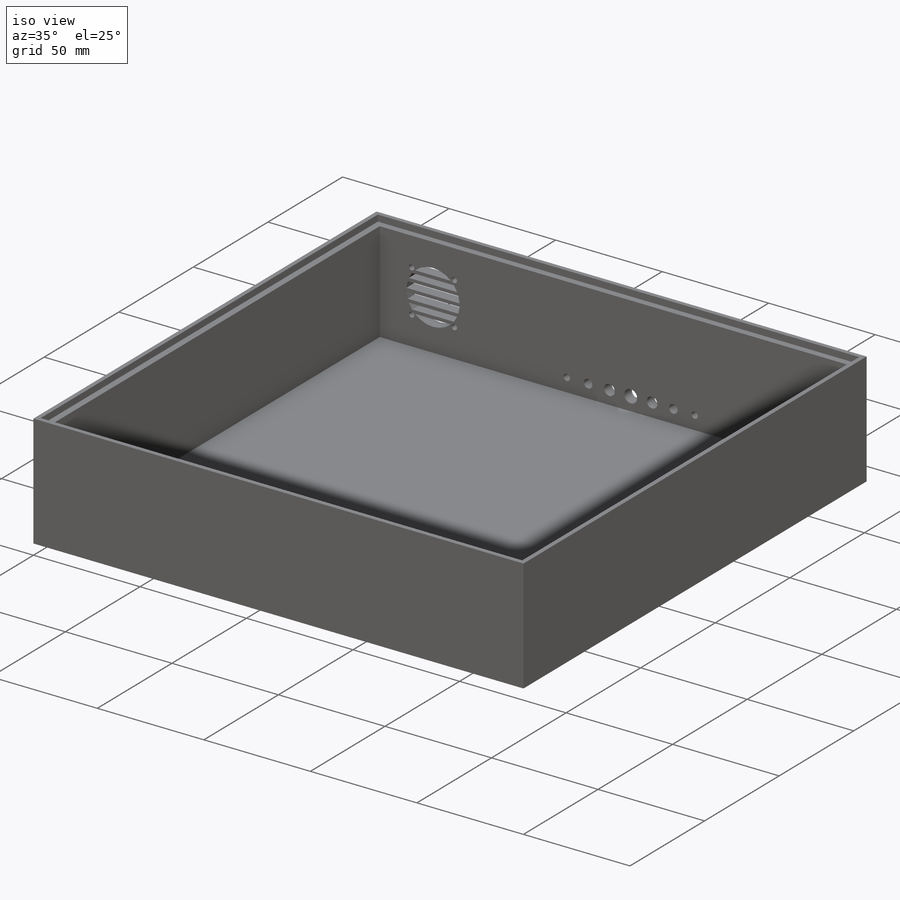
[diagram: iso view]
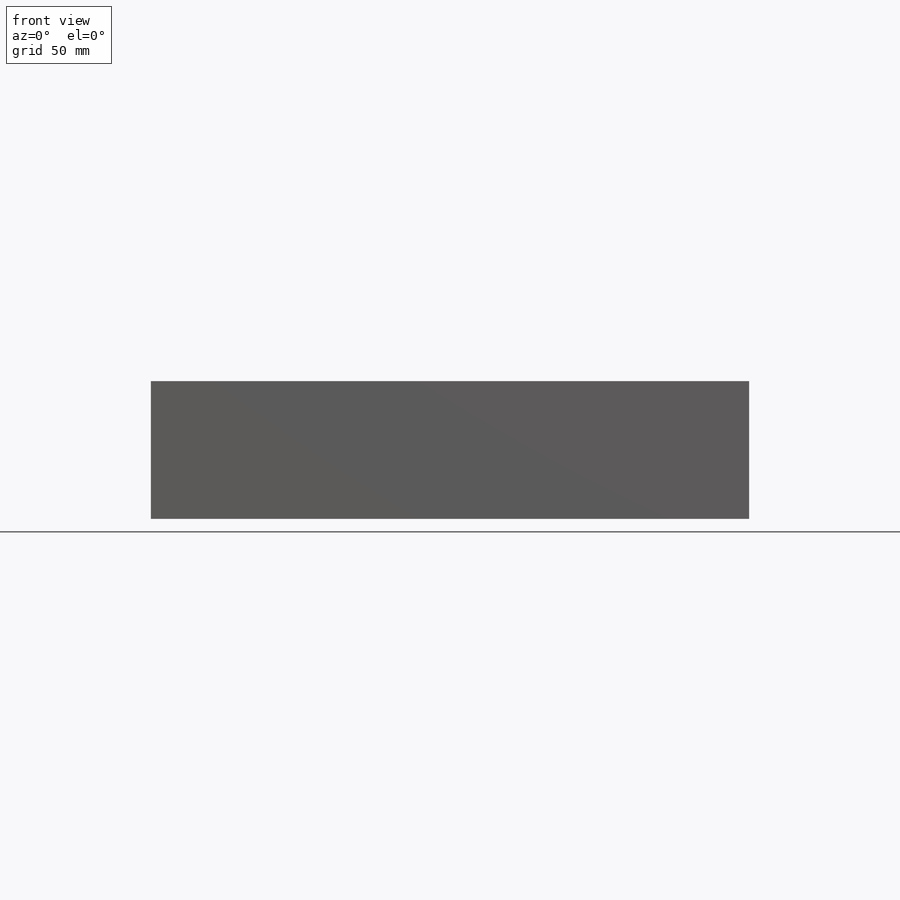
[diagram: front view]
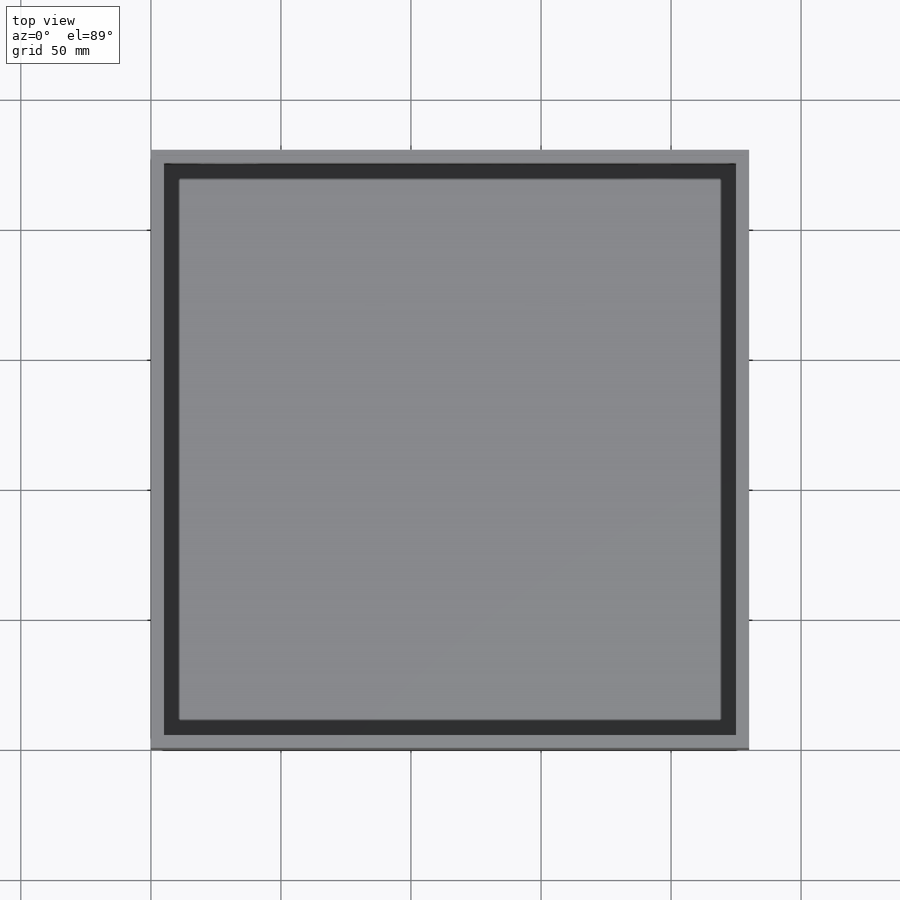
[diagram: top view]
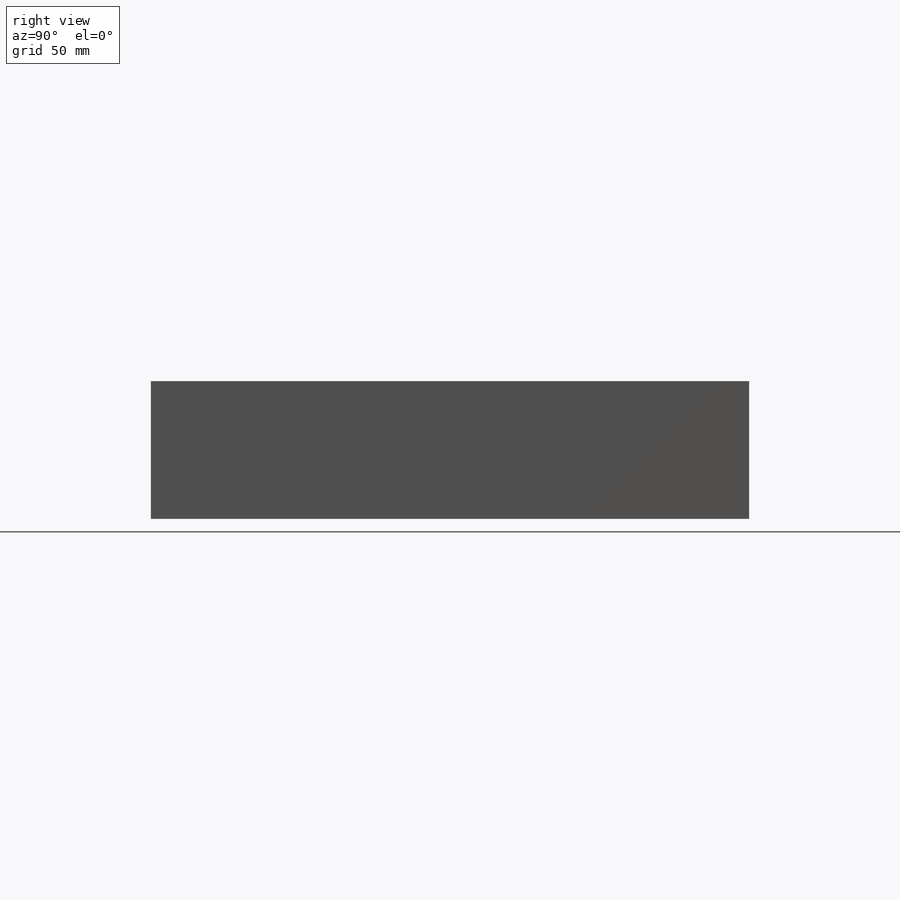
[diagram: right view]
SOLIDWORKS PART (.sldprt)
format: sldprt  version: not decoded by parser v0  size: 774,144 bytes
history: native  units: mm
features: sketch x9, cut_extrude x7, plane x3, extrude x2, material x1 (+10 scaffold rows collapsed)
feature tree (32):
  scaffold x10  (default folders/planes/origin — collapsed)
  material  "Matériau <non spécifié>"
  plane  "Plan de face"
  plane  "Plan de dessus"
  plane  "Plan de droite"
  sketch  "Esquisse1"  dims[D1=230.0mm D2=230.0mm]
  extrude  "Boss.-Extru.1"  Depth=53mm
  sketch  "Esquisse2"  dims[D1=220.0mm D2=220.0mm D3=5.0mm D4=5.0mm D5=5.0mm D6=5.0mm D7=220.0mm]
  cut_extrude  "Enlèv. mat.-Extru.1"  Depth=50mm
  sketch  "Esquisse3"  dims[D1=226.0mm D2=226.0mm D3=2.0mm D4=2.0mm]
  cut_extrude  "Enlèv. mat.-Extru.2"  Depth=3mm
  sketch  "Esquisse4"  dims[c1.D1=25.0mm c1.D2=25.0mm c1.D3=25.0mm c2.D2=30.0mm c2.D3=26.5mm]
  cut_extrude  "Enlèv. mat.-Extru.3"  Depth=13mm
  sketch  "Esquisse5"  dims[c1.D1=2.5mm c1.D2=2.5mm c1.D3=2.5mm c1.D4=2.5mm c1.D5=2.5mm c1.D6=2.5mm c1.D7=2.5mm c1.D8=2.5mm c1.D9=2.5mm c1.D10=2.5mm c1.D11=2.5mm c2.D5=20.0mm c2.D6=20.0mm c2.D7=20.0mm c2.D8=20.0mm c2.D9=16.5mm c2.D10=16.5mm c2.D11=20.0mm]
  cut_extrude  "Enlèv. mat.-Extru.4"  Depth=13mm
  sketch  "Esquisse6"  dims[c1.D1=1.5mm c1.D2=1.5mm c1.D3=1.5mm c1.D4=1.5mm c1.D5=1.5mm c1.D6=10.0mm c1.D7=5.0mm c1.D8=0.75mm c1.D9=5.0mm c1.D10=10.0mm c2.D1=17.0mm c2.D2=21.5mm c3.D1=~18.718397mm c4.D1=~0.301385deg c5.D1=1.5mm c5.D2=9.25mm c5.D3=5.25mm c5.D4=5.25mm c5.D5=9.25mm c5.D6=1.5mm]
  extrude  "Boss.-Extru.2"  Depth=5mm
  sketch  "Esquisse7"  dims[c1.D1=6.0mm c1.D2=6.0mm c1.D3=6.0mm c2.D2=8.0mm c2.D3=15.0mm]
  cut_extrude  "Enlèv. mat.-Extru.5"  Depth=5mm
  sketch  "Esquisse9"  dims[D1=12.6mm D2=11.4mm D3=30.0mm]
  cut_extrude  "Enlèv. mat.-Extru.6"  Depth=5mm
  sketch  "Esquisse10"  dims[c1.D1=3.0mm c1.D2=4.0mm c1.D3=5.0mm c1.D4=6.0mm c1.D5=5.0mm c1.D6=4.0mm c1.D7=3.0mm c1.D8=3.0mm c1.D9=4.0mm c1.D10=5.0mm c1.D11=3.0mm c1.D12=5.0mm c1.D13=6.0mm c2.D8=10.0mm c2.D9=10.0mm c2.D10=10.0mm c2.D11=10.0mm c2.D12=10.0mm c2.D13=10.0mm]
  cut_extrude  "Enlèv. mat.-Extru.7"  Depth=10mm
decode coverage: 18 of 18 modeling features carry decoded parameters
note: ~ marks probable driven/reference dimensions
note: suppression state not decoded; provenance and decode notes live in map.json
